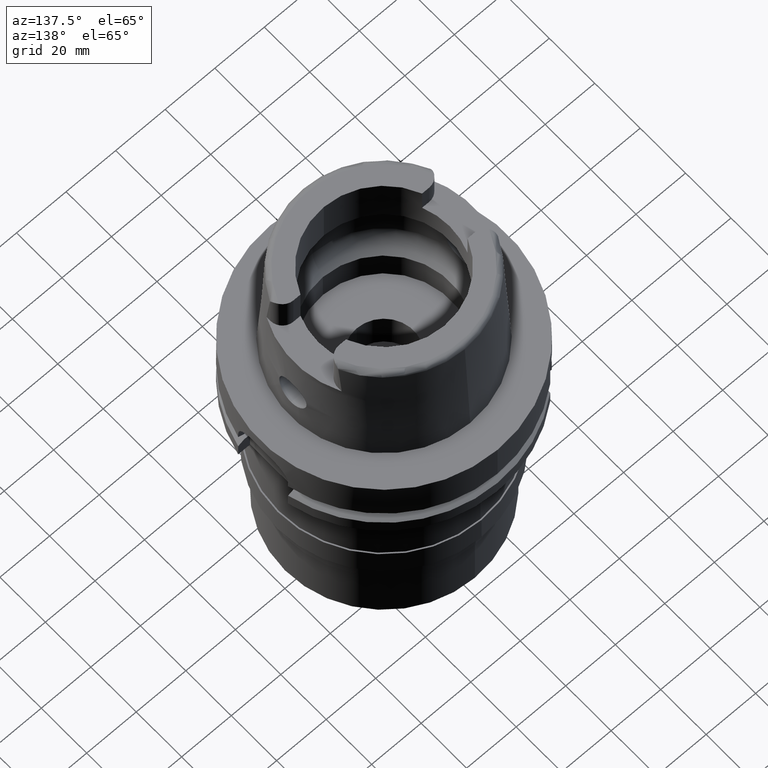
[diagram: clean part render]
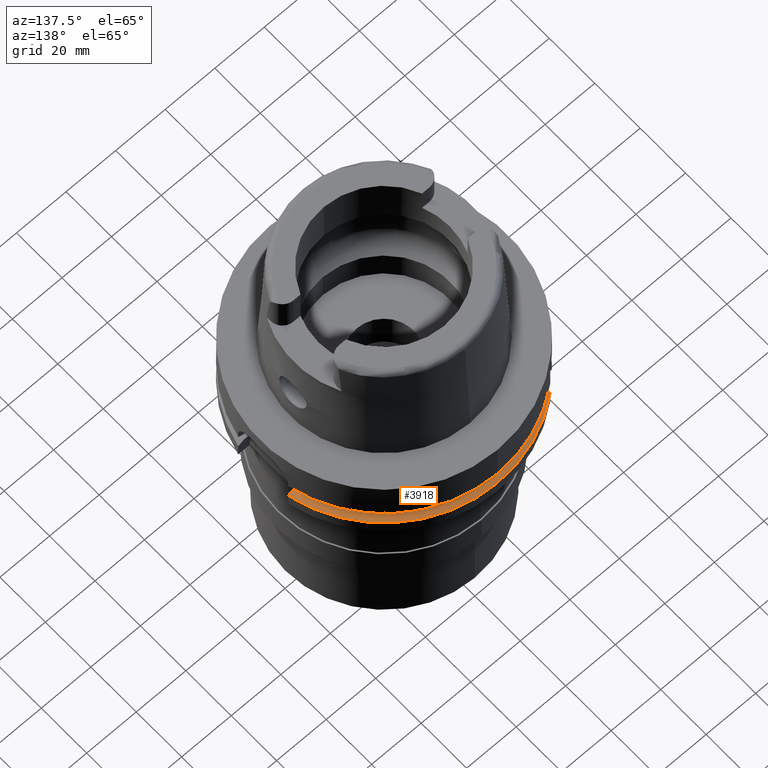
[diagram: same view with one face highlighted and labeled with its STEP entity id]
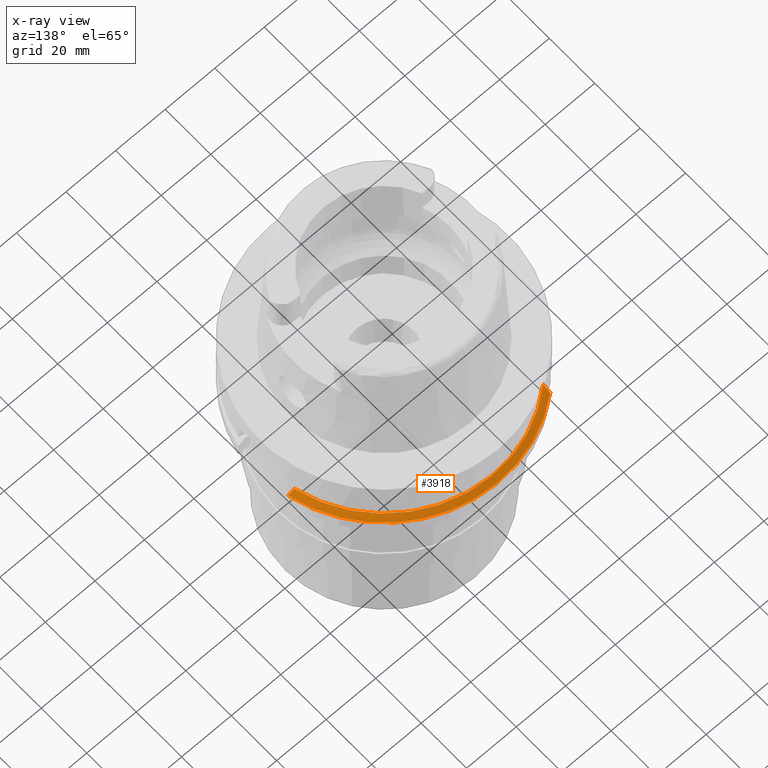
[diagram: x-ray of the same camera — body ghosted, the highlighted face saturated]
A machine part, auxiliary view. The second image highlights one B-rep face of the part: STEP entity #3918.
The next image is the same camera in x-ray: the body ghosted, the highlighted face saturated — about 0% of this face is hidden behind the body in this view.
In plain terms, the highlighted conical surface has half-angle 60 deg.
Its self-contained STEP definition (entity closure, byte-faithful):
#1691=CARTESIAN_POINT('',(0.E0,0.E0,-2.1875E1));
#1692=DIRECTION('',(0.E0,0.E0,-1.E0));
#1693=DIRECTION('',(-6.614507215588E-1,7.499886285467E-1,0.E0));
#1694=AXIS2_PLACEMENT_3D('',#1691,#1692,#1693);
#1699=CARTESIAN_POINT('',(0.E0,0.E0,-2.1875E1));
#1700=DIRECTION('',(0.E0,0.E0,-1.E0));
#1701=DIRECTION('',(0.E0,1.E0,0.E0));
#1702=AXIS2_PLACEMENT_3D('',#1699,#1700,#1701);
#1723=CARTESIAN_POINT('',(-3.150000097289E1,3.571639618402E1,-2.1875E1));
#1724=CARTESIAN_POINT('',(-3.150000097289E1,3.605789002737E1,
-2.202286891912E1));
#1725=CARTESIAN_POINT('',(-3.150000002063E1,3.674380017621E1,
-2.232173054124E1));
#1726=CARTESIAN_POINT('',(-3.149999846845E1,3.778158713267E1,
-2.277929841516E1));
#1727=CARTESIAN_POINT('',(-3.150000355986E1,3.847935690318E1,
-2.309050172011E1));
#1728=CARTESIAN_POINT('',(-3.150000355986E1,3.882975374283E1,
-2.324760820812E1));
#1733=CARTESIAN_POINT('',(0.E0,0.E0,-2.324759526419E1));
#1734=DIRECTION('',(0.E0,0.E0,-1.E0));
#1735=DIRECTION('',(-6.3E-1,7.765951326142E-1,0.E0));
#1736=AXIS2_PLACEMENT_3D('',#1733,#1734,#1735);
#1741=CARTESIAN_POINT('',(0.E0,0.E0,-2.324759526419E1));
#1742=DIRECTION('',(0.E0,0.E0,-1.E0));
#1743=DIRECTION('',(0.E0,1.E0,0.E0));
#1744=AXIS2_PLACEMENT_3D('',#1741,#1742,#1743);
#1749=CARTESIAN_POINT('',(4.877499359303E1,1.1E1,-2.324759526419E1));
#1750=CARTESIAN_POINT('',(4.850399904748E1,1.1E1,-2.309496975038E1));
#1751=CARTESIAN_POINT('',(4.796191616323E1,1.1E1,-2.278979543230E1));
#1752=CARTESIAN_POINT('',(4.714851446810E1,1.1E1,-2.233225649733E1));
#1753=CARTESIAN_POINT('',(4.660605711265E1,1.1E1,-2.202738808211E1));
#1754=CARTESIAN_POINT('',(4.633477721644E1,1.1E1,-2.1875E1));
#2480=CARTESIAN_POINT('',(-3.150000355986E1,3.882975374283E1,
-2.324760820812E1));
#2481=VERTEX_POINT('',#2480);
#2482=VERTEX_POINT('',#1723);
#2500=CARTESIAN_POINT('',(4.877499359303E1,1.1E1,-2.324759526419E1));
#2501=VERTEX_POINT('',#2500);
#2502=CARTESIAN_POINT('',(0.E0,5.E1,-2.324759526419E1));
#2503=VERTEX_POINT('',#2502);
#2539=VERTEX_POINT('',#1754);
#2540=CARTESIAN_POINT('',(-1.598721155460E-14,4.762259526419E1,-2.1875E1));
#2541=VERTEX_POINT('',#2540);
#3905=CARTESIAN_POINT('',(0.E0,0.E0,-2.256129763210E1));
#3906=DIRECTION('',(0.E0,0.E0,-1.E0));
#3907=DIRECTION('',(0.E0,-1.E0,0.E0));
#3908=AXIS2_PLACEMENT_3D('',#3905,#3906,#3907);
#3909=CONICAL_SURFACE('',#3908,4.881129763209E1,6.E1);
#3910=ORIENTED_EDGE('',*,*,#3571,.T.);
#3911=ORIENTED_EDGE('',*,*,#3602,.T.);
#3912=ORIENTED_EDGE('',*,*,#3600,.T.);
#3913=ORIENTED_EDGE('',*,*,#3627,.T.);
#3914=ORIENTED_EDGE('',*,*,#3897,.F.);
#3915=ORIENTED_EDGE('',*,*,#3895,.F.);
#3916=EDGE_LOOP('',(#3910,#3911,#3912,#3913,#3914,#3915));
#3917=FACE_OUTER_BOUND('',#3916,.F.);
#1695=CIRCLE('',#1694,4.762259526419E1);
#1703=CIRCLE('',#1702,4.762259526419E1);
#1729=B_SPLINE_CURVE_WITH_KNOTS('',3,(#1723,#1724,#1725,#1726,#1727,#1728),
.UNSPECIFIED.,.F.,.F.,(4,1,1,4),(0.E0,3.333333333333E-1,6.666666666667E-1,1.E0),
.UNSPECIFIED.);
#1737=CIRCLE('',#1736,5.E1);
#1745=CIRCLE('',#1744,5.E1);
#1755=B_SPLINE_CURVE_WITH_KNOTS('',3,(#1749,#1750,#1751,#1752,#1753,#1754),
.UNSPECIFIED.,.F.,.F.,(4,1,1,4),(0.E0,3.333333333333E-1,6.666666666667E-1,1.E0),
.UNSPECIFIED.);
#3571=EDGE_CURVE('',#2482,#2481,#1729,.T.);
#3600=EDGE_CURVE('',#2503,#2501,#1745,.T.);
#3602=EDGE_CURVE('',#2481,#2503,#1737,.T.);
#3627=EDGE_CURVE('',#2501,#2539,#1755,.T.);
#3895=EDGE_CURVE('',#2482,#2541,#1695,.T.);
#3897=EDGE_CURVE('',#2541,#2539,#1703,.T.);
#3918=ADVANCED_FACE('',(#3917),#3909,.T.);